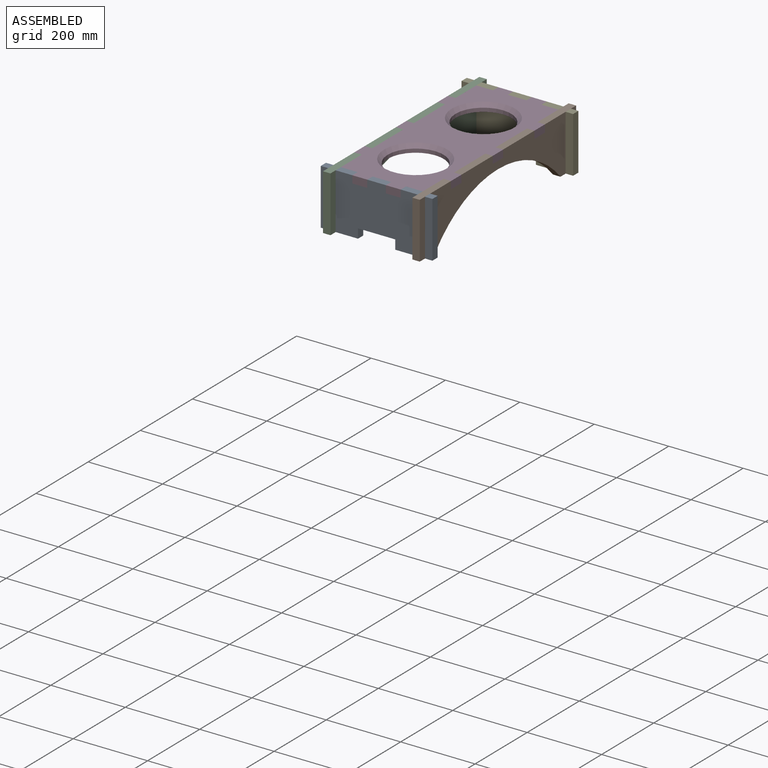
[diagram: assembled view]
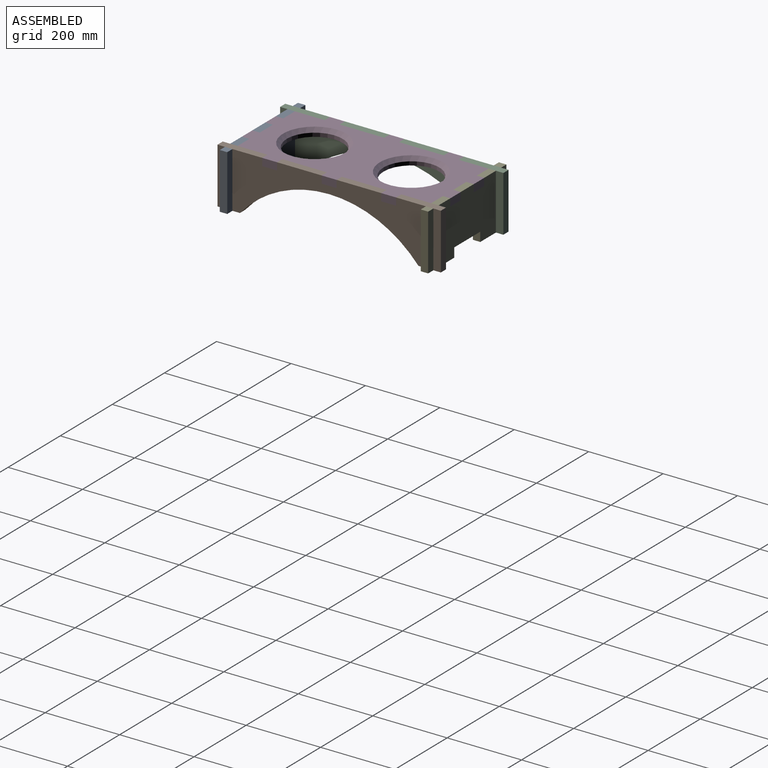
[diagram: assembled view, second angle]
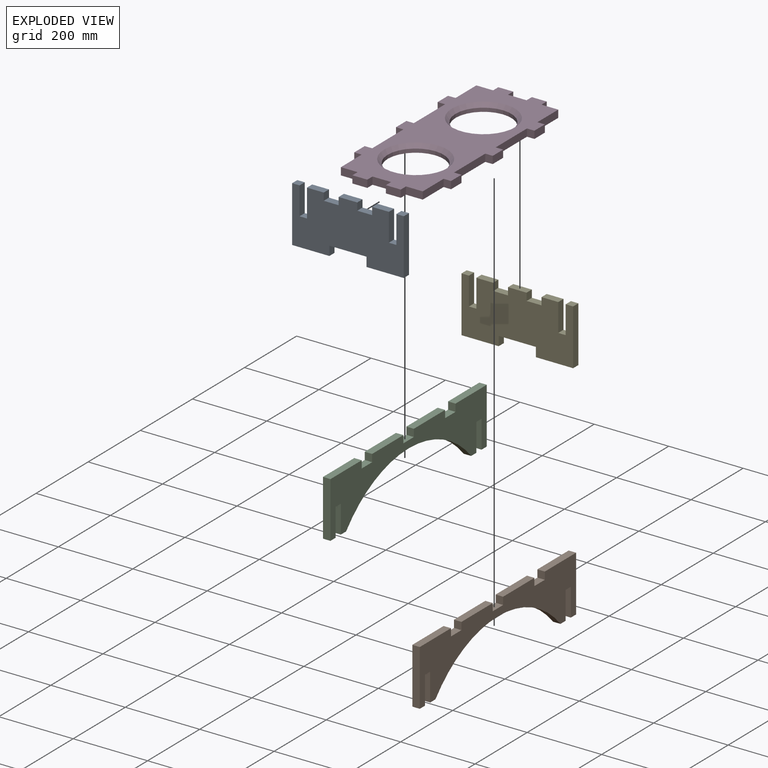
[diagram: exploded view]
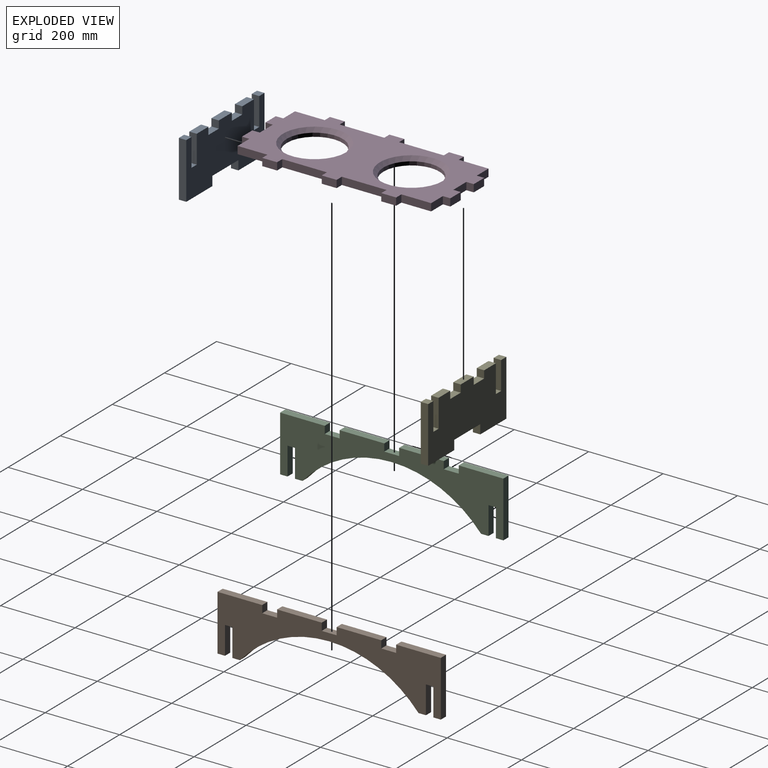
[diagram: exploded view, second angle]
ASSEMBLY  parts=5 mates=4
PART A: 26 faces, bbox 300x20x150 mm
  f0: plane 20x20mm, normal (1,0,0), area 400mm2, adj f1,f23,f24,f25
  f1: plane 50x20mm, normal (0,0,1), area 1000mm2, adj f0,f2,f24,f25
  f2: plane 20x20mm, normal (-1,0,0), area 400mm2, adj f1,f3,f24,f25
  f3: plane 40x20mm, normal (0,0,1), area 800mm2, adj f2,f4,f24,f25
  f4: plane 20x20mm, normal (1,0,0), area 400mm2, adj f3,f5,f24,f25
  f5: plane 45x20mm, normal (0,0,1), area 900mm2, adj f4,f6,f24,f25
  f6: plane 75x20mm, normal (-1,0,0), area 1500mm2, adj f5,f7,f24,f25
  f7: plane 20x20mm, normal (0,0,1), area 400mm2, adj f6,f8,f24,f25
  f8: plane 75x20mm, normal (1,0,0), area 1500mm2, adj f7,f9,f24,f25
  f9: plane 20x20mm, normal (0,0,1), area 400mm2, adj f8,f10,f24,f25
  f10: plane 150x20mm, normal (-1,0,0), area 3000mm2, adj f9,f11,f24,f25
  f11: plane 100x20mm, normal (0,0,-1), area 2000mm2, adj f10,f12,f24,f25
  f12: plane 25x20mm, normal (1,0,0), area 500mm2, adj f11,f13,f24,f25
  f13: plane 100x20mm, normal (0,0,-1), area 2000mm2, adj f12,f14,f24,f25
  f14: plane 25x20mm, normal (-1,0,0), area 500mm2, adj f13,f15,f24,f25
  f15: plane 100x20mm, normal (0,0,-1), area 2000mm2, adj f14,f16,f24,f25
  f16: plane 150x20mm, normal (1,0,0), area 3000mm2, adj f15,f17,f24,f25
  f17: plane 20x20mm, normal (0,0,1), area 400mm2, adj f16,f18,f24,f25
  f18: plane 75x20mm, normal (-1,0,0), area 1500mm2, adj f17,f19,f24,f25
  f19: plane 20x20mm, normal (0,0,1), area 400mm2, adj f18,f20,f24,f25
  f20: plane 75x20mm, normal (1,0,0), area 1500mm2, adj f19,f21,f24,f25
  f21: plane 45x20mm, normal (0,0,1), area 900mm2, adj f20,f22,f24,f25
  f22: plane 20x20mm, normal (-1,0,0), area 400mm2, adj f21,f23,f24,f25
  f23: plane 40x20mm, normal (0,0,1), area 800mm2, adj f0,f22,f24,f25
  f24: plane 300x150mm, normal (0,-1,0), area 37900mm2, adj f0,f1,f2,f3,f4,f5,f6,f7
  f25: plane 300x150mm, normal (0,1,0), area 37900mm2, adj f0,f1,f2,f3,f4,f5,f6,f7
PART B: 28 faces, bbox 600x20x150 mm
  f0: plane 20x20mm, normal (1,0,0), area 400mm2, adj f1,f25,f26,f27
  f1: plane 120x20mm, normal (0,0,1), area 2400mm2, adj f0,f2,f26,f27
  f2: plane 150x20mm, normal (-1,0,0), area 3000mm2, adj f1,f3,f26,f27
  f3: plane 20x20mm, normal (0,0,-1), area 400mm2, adj f2,f4,f26,f27
  f4: plane 75x20mm, normal (1,0,0), area 1500mm2, adj f3,f5,f26,f27
  f5: plane 20x20mm, normal (0,0,-1), area 400mm2, adj f4,f6,f26,f27
  f6: plane 75x20mm, normal (-1,0,0), area 1500mm2, adj f5,f7,f26,f27
  f7: plane 20x20mm, normal (0,0,-1), area 400mm2, adj f6,f8,f26,f27
  f8: cylinder r=316.82mm len=480mm, axis (0,1,0), area 10892.5mm2, adj f7,f9,f26,f27
  f9: plane 20x20mm, normal (0,0,-1), area 400mm2, adj f8,f10,f26,f27
  f10: plane 75x20mm, normal (1,0,0), area 1500mm2, adj f9,f11,f26,f27
  f11: plane 20x20mm, normal (0,0,-1), area 400mm2, adj f10,f12,f26,f27
  f12: plane 75x20mm, normal (-1,0,0), area 1500mm2, adj f11,f13,f26,f27
  f13: plane 20x20mm, normal (0,0,-1), area 400mm2, adj f12,f14,f26,f27
  f14: plane 150x20mm, normal (1,0,0), area 3000mm2, adj f13,f15,f26,f27
  f15: plane 120x20mm, normal (0,0,1), area 2400mm2, adj f14,f16,f26,f27
  f16: plane 20x20mm, normal (-1,0,0), area 400mm2, adj f15,f17,f26,f27
  f17: plane 40x20mm, normal (0,0,1), area 800mm2, adj f16,f18,f26,f27
  f18: plane 20x20mm, normal (1,0,0), area 400mm2, adj f17,f19,f26,f27
  f19: plane 120x20mm, normal (0,0,1), area 2400mm2, adj f18,f20,f26,f27
  f20: plane 20x20mm, normal (-1,0,0), area 400mm2, adj f19,f21,f26,f27
  f21: plane 40x20mm, normal (0,0,1), area 800mm2, adj f20,f22,f26,f27
  f22: plane 20x20mm, normal (1,0,0), area 400mm2, adj f21,f23,f26,f27
  f23: plane 120x20mm, normal (0,0,1), area 2400mm2, adj f22,f24,f26,f27
  f24: plane 20x20mm, normal (-1,0,0), area 400mm2, adj f23,f25,f26,f27
  f25: plane 40x20mm, normal (0,0,1), area 800mm2, adj f0,f24,f26,f27
  f26: plane 600x150mm, normal (0,-1,0), area 47962.7mm2, adj f0,f1,f2,f3,f4,f5,f6,f7
  f27: plane 600x150mm, normal (0,1,0), area 47962.7mm2, adj f0,f1,f2,f3,f4,f5,f6,f7
PART C: same geometry as B
PART D: 50 faces, bbox 560x260x20 mm
  f0: plane 20x20mm, normal (1,0,0), area 400mm2, adj f1,f44,f46,f47
  f1: plane 120x20mm, normal (0,-1,0), area 2400mm2, adj f0,f2,f46,f47
  f2: plane 20x20mm, normal (-1,0,0), area 400mm2, adj f1,f3,f46,f47
  f3: plane 40x20mm, normal (0,-1,0), area 800mm2, adj f2,f4,f46,f47
  f4: plane 20x20mm, normal (1,0,0), area 400mm2, adj f3,f5,f46,f47
  f5: plane 80x20mm, normal (0,-1,0), area 1600mm2, adj f4,f6,f46,f47
  f6: plane 45x20mm, normal (1,0,0), area 900mm2, adj f5,f7,f46,f47
  f7: plane 20x20mm, normal (0,-1,0), area 400mm2, adj f6,f8,f46,f47
  f8: plane 40x20mm, normal (1,0,0), area 800mm2, adj f7,f9,f46,f47
  f9: plane 20x20mm, normal (0,1,0), area 400mm2, adj f8,f10,f46,f47
  f10: plane 50x20mm, normal (1,0,0), area 1000mm2, adj f9,f11,f46,f47
  f11: plane 20x20mm, normal (0,-1,0), area 400mm2, adj f10,f12,f46,f47
  f12: plane 40x20mm, normal (1,0,0), area 800mm2, adj f11,f13,f46,f47
  f13: plane 20x20mm, normal (0,1,0), area 400mm2, adj f12,f14,f46,f47
  f14: plane 45x20mm, normal (1,0,0), area 900mm2, adj f13,f15,f46,f47
  f15: plane 80x20mm, normal (0,1,0), area 1600mm2, adj f14,f16,f46,f47
  f16: plane 20x20mm, normal (1,0,0), area 400mm2, adj f15,f17,f46,f47
  f17: plane 40x20mm, normal (0,1,0), area 800mm2, adj f16,f18,f46,f47
  f18: plane 20x20mm, normal (-1,0,0), area 400mm2, adj f17,f19,f46,f47
  f19: plane 120x20mm, normal (0,1,0), area 2400mm2, adj f18,f20,f46,f47
  f20: plane 20x20mm, normal (1,0,0), area 400mm2, adj f19,f21,f46,f47
  f21: plane 40x20mm, normal (0,1,0), area 800mm2, adj f20,f22,f46,f47
  f22: plane 20x20mm, normal (-1,0,0), area 400mm2, adj f21,f23,f46,f47
  f23: plane 120x20mm, normal (0,1,0), area 2400mm2, adj f22,f24,f46,f47
  f24: plane 20x20mm, normal (1,0,0), area 400mm2, adj f23,f25,f46,f47
  f25: plane 40x20mm, normal (0,1,0), area 800mm2, adj f24,f26,f46,f47
  f26: plane 20x20mm, normal (-1,0,0), area 400mm2, adj f25,f27,f46,f47
  f27: plane 80x20mm, normal (0,1,0), area 1600mm2, adj f26,f28,f46,f47
  f28: plane 45x20mm, normal (-1,0,0), area 900mm2, adj f27,f29,f46,f47
  f29: plane 20x20mm, normal (0,1,0), area 400mm2, adj f28,f30,f46,f47
  f30: plane 40x20mm, normal (-1,0,0), area 800mm2, adj f29,f31,f46,f47
  f31: plane 20x20mm, normal (0,-1,0), area 400mm2, adj f30,f32,f46,f47
  f32: plane 50x20mm, normal (-1,0,0), area 1000mm2, adj f31,f33,f46,f47
  f33: plane 20x20mm, normal (0,1,0), area 400mm2, adj f32,f34,f46,f47
  f34: plane 40x20mm, normal (-1,0,0), area 800mm2, adj f33,f35,f46,f47
  f35: plane 20x20mm, normal (0,-1,0), area 400mm2, adj f34,f36,f46,f47
  f36: plane 45x20mm, normal (-1,0,0), area 900mm2, adj f35,f37,f46,f47
  f37: plane 80x20mm, normal (0,-1,0), area 1600mm2, adj f36,f38,f46,f47
  f38: plane 20x20mm, normal (-1,0,0), area 400mm2, adj f37,f39,f46,f47
  f39: plane 40x20mm, normal (0,-1,0), area 800mm2, adj f38,f40,f46,f47
  f40: plane 20x20mm, normal (1,0,0), area 400mm2, adj f39,f41,f46,f47
  f41: plane 120x20mm, normal (0,-1,0), area 2400mm2, adj f40,f42,f46,f47
  f42: plane 20x20mm, normal (-1,0,0), area 400mm2, adj f41,f44,f46,f47
  f43: cylinder r=75mm len=150mm, axis (0,0,-1), area 4712.4mm2, adj f47,f48
  f44: plane 40x20mm, normal (0,-1,0), area 800mm2, adj f0,f42,f46,f47
  f45: cylinder r=75mm len=150mm, axis (0,0,-1), area 4712.4mm2, adj f47,f49
  f46: plane 560x260mm, normal (0,0,1), area 77004mm2, adj f0,f1,f2,f3,f4,f5,f6,f7
  f47: plane 560x260mm, normal (0,0,-1), area 87057.1mm2, adj f0,f1,f2,f3,f4,f5,f6,f7
  f48: cone r=75mm half-angle=45deg, axis (0,0,1), area 7108.6mm2, adj f43,f46
  f49: cone r=75mm half-angle=45deg, axis (0,0,1), area 7108.6mm2, adj f45,f46
PART E: same geometry as A
PLACE A t=(268.46,387.05,48.32)mm
PLACE B rot(axis=(0,0,-1),90deg) t=(548.46,947.05,48.32)mm
PLACE C rot(axis=(0,0,1),90deg) t=(288.46,347.05,48.32)mm
PLACE D rot(axis=(0,0,1),90deg) t=(528.46,387.05,178.32)mm
PLACE E t=(268.46,927.05,48.32)mm
MATE fastened C.f5 <-> A.f7  axis (0,0,-1) through (298.46,377.05,123.32)mm
MATE fastened B.f5 <-> E.f19  axis (0,0,-1) through (538.46,917.05,123.32)mm
MATE fastened C.f11 <-> E.f7  axis (0,0,-1) through (298.46,917.05,123.32)mm
MATE fastened D.f35 <-> A.f22  axis (1,0,0) through (483.46,377.05,188.32)mm
